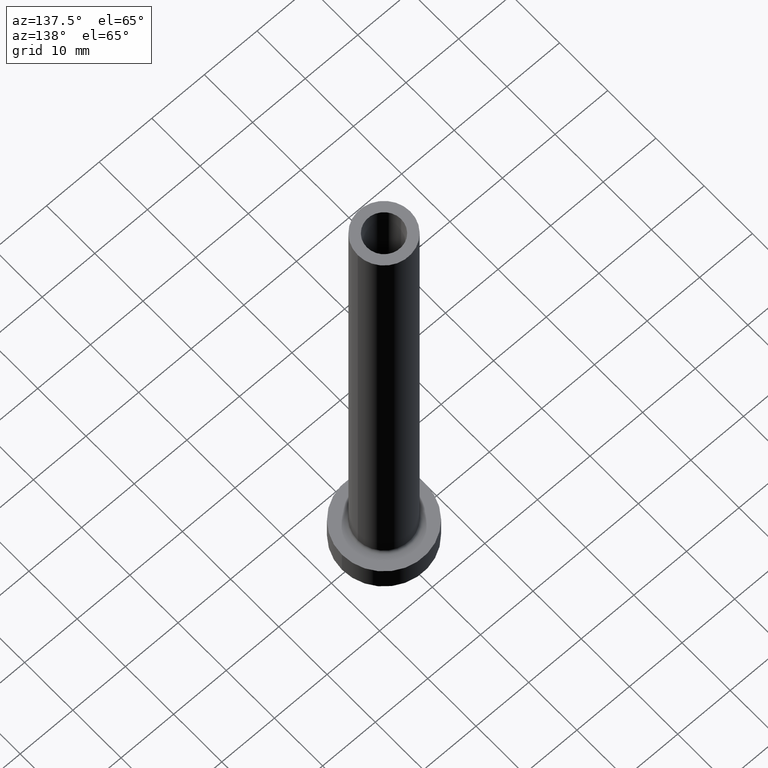
[diagram: clean part render]
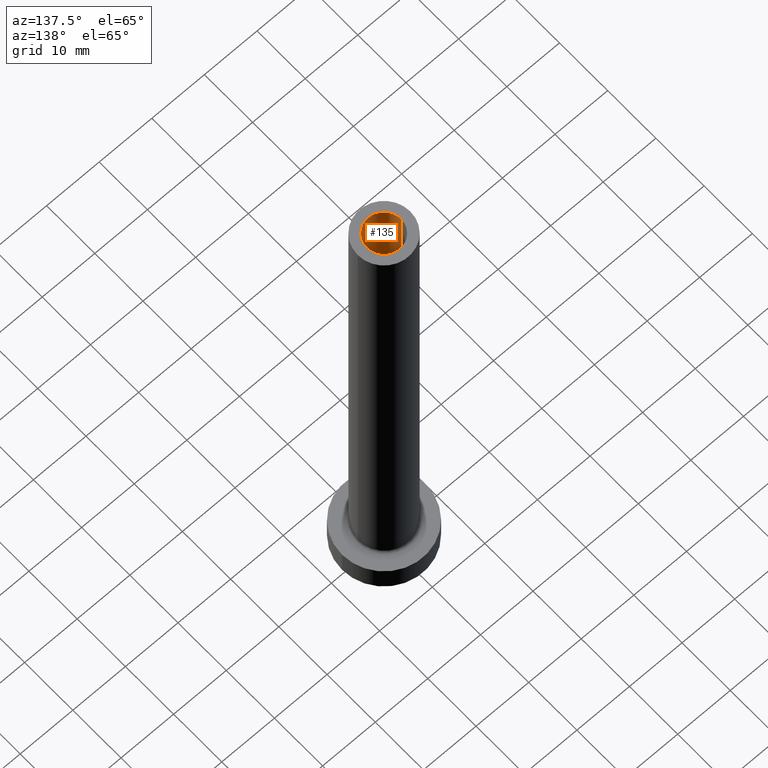
[diagram: same view with one face highlighted and labeled with its STEP entity id]
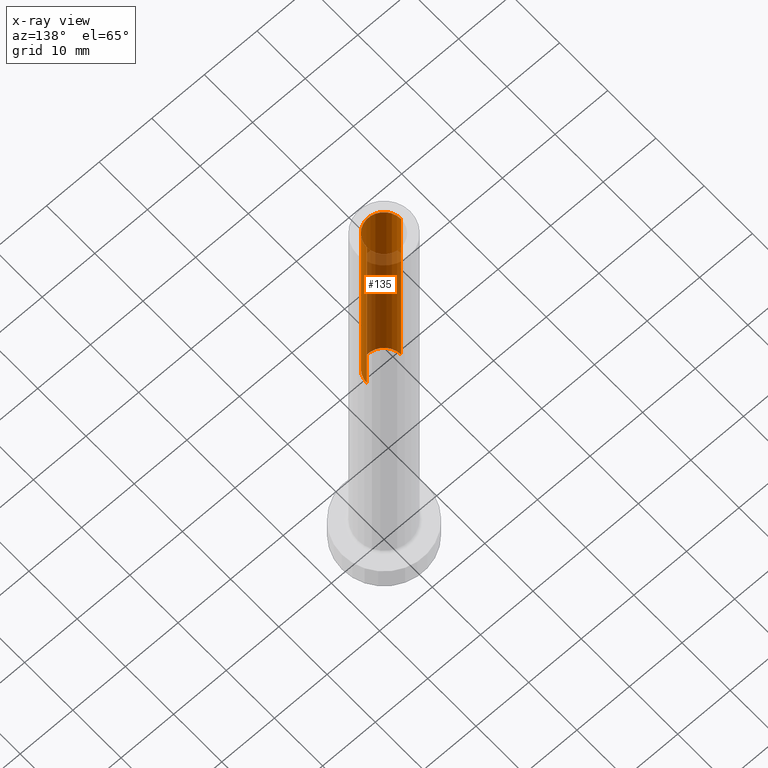
[diagram: x-ray of the same camera — body ghosted, the highlighted face saturated]
A machine part, auxiliary view. The second image highlights one B-rep face of the part: STEP entity #135.
The next image is the same camera in x-ray: the body ghosted, the highlighted face saturated — about 60% of this face is hidden behind the body in this view.
In plain terms, the highlighted cylindrical surface (edge-blend (fillet) strip) has radius 3.25 mm, axis along (0, 0, -1).
Its self-contained STEP definition (entity closure, byte-faithful):
#2 = CARTESIAN_POINT ( 'NONE',  ( 0.000000000000000000, 0.000000000000000000, 100.0000000000000000 ) ) ;
#20 = CARTESIAN_POINT ( 'NONE',  ( 3.250000000000000444, 3.980102097228897245E-16, 100.0000000000000000 ) ) ;
#22 = VERTEX_POINT ( 'NONE', #244 ) ;
#23 = CIRCLE ( 'NONE', #83, 3.250000000000000444 ) ;
#35 = DIRECTION ( 'NONE',  ( 0.000000000000000000, 0.000000000000000000, 1.000000000000000000 ) ) ;
#44 = DIRECTION ( 'NONE',  ( 0.000000000000000000, 0.000000000000000000, -1.000000000000000000 ) ) ;
#54 = CARTESIAN_POINT ( 'NONE',  ( -3.250000000000000444, 0.000000000000000000, 55.00000000000000711 ) ) ;
#73 = DIRECTION ( 'NONE',  ( 1.000000000000000000, 0.000000000000000000, 0.000000000000000000 ) ) ;
#83 = AXIS2_PLACEMENT_3D ( 'NONE', #390, #35, #73 ) ;
#102 = AXIS2_PLACEMENT_3D ( 'NONE', #113, #162, #222 ) ;
#109 = CARTESIAN_POINT ( 'NONE',  ( -3.250000000000000444, 0.000000000000000000, 100.0000000000000000 ) ) ;
#113 = CARTESIAN_POINT ( 'NONE',  ( 0.000000000000000000, 0.000000000000000000, 55.00000000000000711 ) ) ;
#135 = ADVANCED_FACE ( 'NONE', ( #385 ), #358, .F. ) ;
#141 = DIRECTION ( 'NONE',  ( 0.000000000000000000, 0.000000000000000000, -1.000000000000000000 ) ) ;
#148 = EDGE_LOOP ( 'NONE', ( #157, #400, #352, #372 ) ) ;
#150 = EDGE_CURVE ( 'NONE', #409, #22, #23, .T. ) ;
#157 = ORIENTED_EDGE ( 'NONE', *, *, #150, .T. ) ;
#162 = DIRECTION ( 'NONE',  ( 0.000000000000000000, 0.000000000000000000, 1.000000000000000000 ) ) ;
#221 = CARTESIAN_POINT ( 'NONE',  ( -3.250000000000000444, 0.000000000000000000, 100.0000000000000000 ) ) ;
#222 = DIRECTION ( 'NONE',  ( 1.000000000000000000, 0.000000000000000000, 0.000000000000000000 ) ) ;
#244 = CARTESIAN_POINT ( 'NONE',  ( 3.250000000000000444, 3.980102097228897245E-16, 100.0000000000000000 ) ) ;
#263 = CARTESIAN_POINT ( 'NONE',  ( 3.250000000000000444, 3.980102097228897245E-16, 55.00000000000000711 ) ) ;
#276 = CIRCLE ( 'NONE', #102, 3.250000000000000444 ) ;
#287 = DIRECTION ( 'NONE',  ( -1.000000000000000000, 0.000000000000000000, 0.000000000000000000 ) ) ;
#323 = VERTEX_POINT ( 'NONE', #263 ) ;
#333 = DIRECTION ( 'NONE',  ( 0.000000000000000000, 0.000000000000000000, -1.000000000000000000 ) ) ;
#334 = AXIS2_PLACEMENT_3D ( 'NONE', #2, #141, #287 ) ;
#339 = EDGE_CURVE ( 'NONE', #375, #323, #276, .T. ) ;
#343 = LINE ( 'NONE', #20, #346 ) ;
#346 = VECTOR ( 'NONE', #44, 1000.000000000000000 ) ;
#352 = ORIENTED_EDGE ( 'NONE', *, *, #339, .F. ) ;
#358 = CYLINDRICAL_SURFACE ( 'NONE', #334, 3.250000000000000444 ) ;
#371 = VECTOR ( 'NONE', #333, 1000.000000000000000 ) ;
#372 = ORIENTED_EDGE ( 'NONE', *, *, #434, .F. ) ;
#375 = VERTEX_POINT ( 'NONE', #54 ) ;
#385 = FACE_OUTER_BOUND ( 'NONE', #148, .T. ) ;
#390 = CARTESIAN_POINT ( 'NONE',  ( 0.000000000000000000, 0.000000000000000000, 100.0000000000000000 ) ) ;
#397 = LINE ( 'NONE', #221, #371 ) ;
#400 = ORIENTED_EDGE ( 'NONE', *, *, #419, .T. ) ;
#409 = VERTEX_POINT ( 'NONE', #109 ) ;
#419 = EDGE_CURVE ( 'NONE', #22, #323, #343, .T. ) ;
#434 = EDGE_CURVE ( 'NONE', #409, #375, #397, .T. ) ;